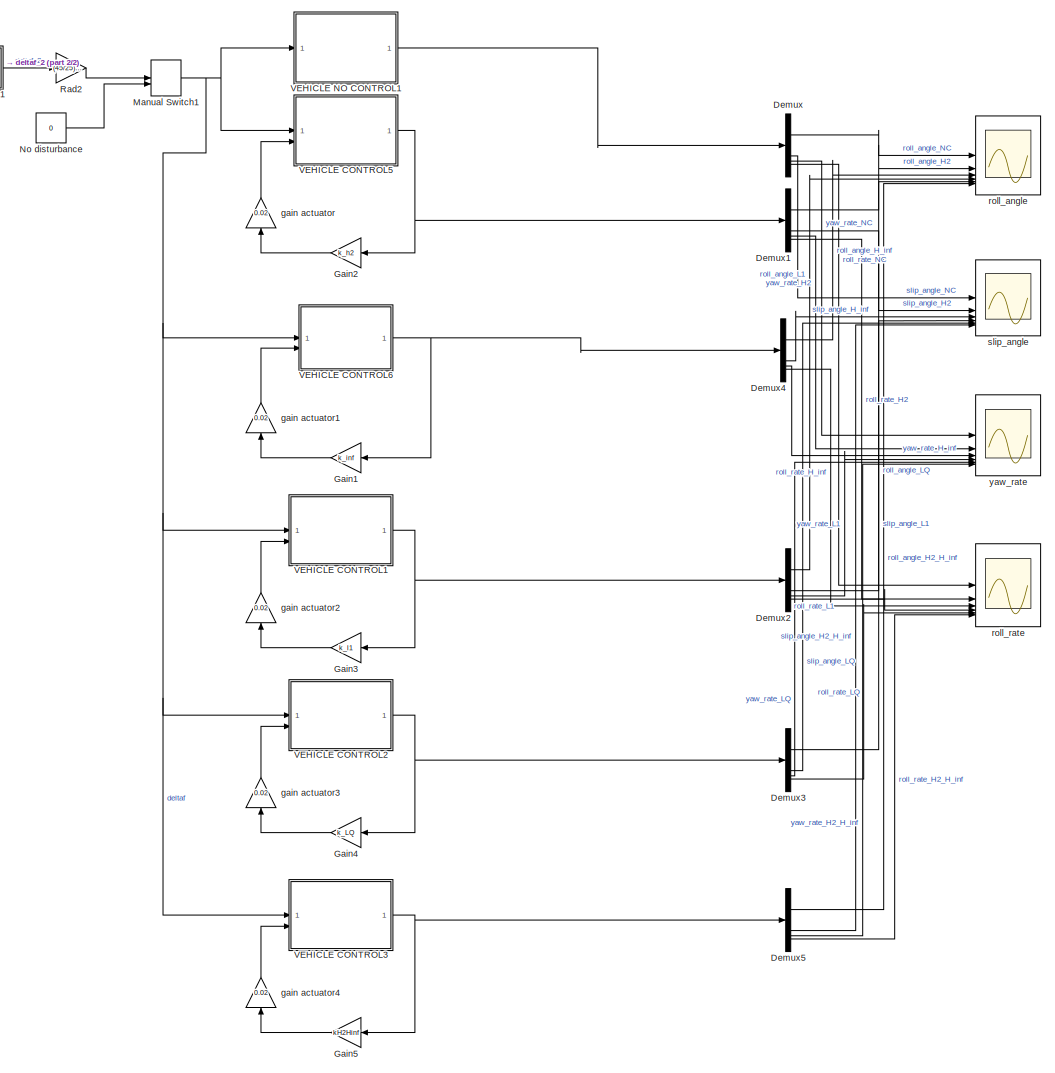
[diagram: root canvas - part 1/2, most of the canvas]
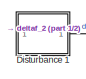
[diagram: root canvas - part 2/2, top left region]
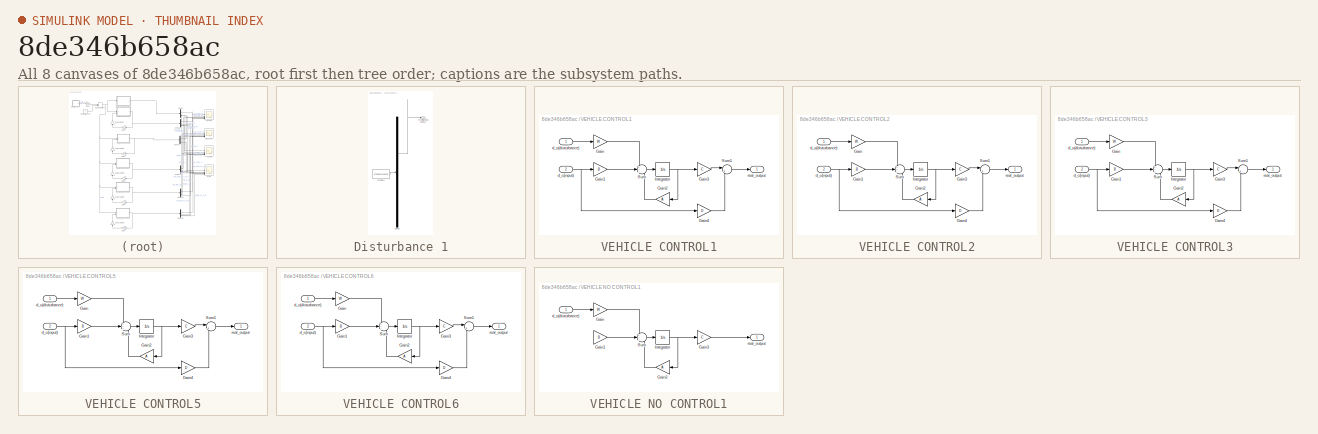
[diagram: thumbnail index - all 8 canvases of the model, root first then tree order]
MODEL slx_8de346b658ac
KIND model
CONFIG AbsTol = auto
CONFIG EnableMultiTasking = off
CONFIG FixedStep = auto
CONFIG MaxStep = auto
CONFIG MinStep = auto
CONFIG RelTol = 1e-3
CONFIG SampleTimeConstraint = Unconstrained
CONFIG SolverName = VariableStepAuto
CONFIG StartTime = 0.0
CONFIG StopTime = 6
BLOCK [Demux] Demux
BLOCK [Demux] Demux1
BLOCK [Demux] Demux2
BLOCK [Demux] Demux3
BLOCK [Demux] Demux4
BLOCK [Demux] Demux5
BLOCK [SubSystem] Disturbance 1
  ClipboardFcn = sigbuilder_block('clipboard');
  CloseFcn = sigbuilder_block('close');
  ContinueFcn = sigbuilder_block('continue');
  CopyFcn = sigbuilder_block('copy');
  DeleteFcn = sigbuilder_block('delete');
  LoadFcn = sigbuilder_block('load');
  MaskHideContents = on
  ModelCloseFcn = sigbuilder_block('modelClose');
  NameChangeFcn = sigbuilder_block('namechange');
  OpenFcn = sigbuilder_block('open',[265.8 141.6 550.8 400.2 ]);
  PauseFcn = sigbuilder_block('pause');
  PreSaveFcn = sigbuilder_block('preSave');
  StartFcn = sigbuilder_block('start');
  StopFcn = sigbuilder_block('stop');
  Tag = STV Subsys
BLOCK [Demux] Disturbance 1/Demux
  DisplayOption = none
  Outputs = 1
  Tag = STV Demux
BLOCK [FromWorkspace] Disturbance 1/FromWs
  Tag = STV FromWs
  VariableName = tuvar
BLOCK [Outport] Disturbance 1/Front steering angel_2
  Tag = STV Outport
BLOCK [Gain] Gain1
  Gain = k_inf
  Multiplication = Matrix(K*u)
  NameLocation = top
BLOCK [Gain] Gain2
  Gain = k_h2
  Multiplication = Matrix(K*u)
  NameLocation = top
BLOCK [Gain] Gain3
  Gain = k_l1
  Multiplication = Matrix(K*u)
  NameLocation = top
BLOCK [Gain] Gain4
  Gain = k_LQ
  Multiplication = Matrix(K*u)
  NameLocation = top
BLOCK [Gain] Gain5
  Gain = kH2Hinf
  Multiplication = Matrix(K*u)
  NameLocation = top
BLOCK [ManualSwitch] Manual Switch1
BLOCK [Constant] No disturbance
  Value = 0
BLOCK [Gain] Rad2
  Gain = (45/25)*(pi/180)
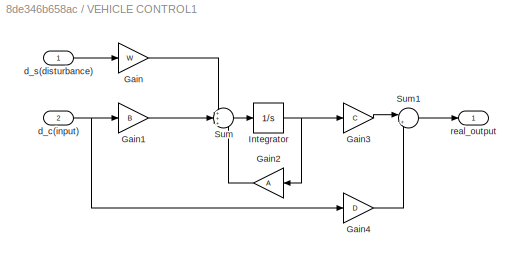
BLOCK [SubSystem] VEHICLE CONTROL1
BLOCK [Gain] VEHICLE CONTROL1/Gain
  Gain = W
  Multiplication = Matrix(K*u)
BLOCK [Gain] VEHICLE CONTROL1/Gain1
  Gain = B
  Multiplication = Matrix(K*u)
BLOCK [Gain] VEHICLE CONTROL1/Gain2
  Gain = A
  Multiplication = Matrix(K*u)
BLOCK [Gain] VEHICLE CONTROL1/Gain3
  Gain = C
  Multiplication = Matrix(K*u)
BLOCK [Gain] VEHICLE CONTROL1/Gain4
  Gain = D
  Multiplication = Matrix(K*u)
BLOCK [Integrator] VEHICLE CONTROL1/Integrator
  InitialCondition = [0, 0, 0, 0]
BLOCK [Sum] VEHICLE CONTROL1/Sum
  Inputs = +++
BLOCK [Sum] VEHICLE CONTROL1/Sum1
  Inputs = |++
BLOCK [Inport] VEHICLE CONTROL1/d_c(input)
  Port = 2
BLOCK [Inport] VEHICLE CONTROL1/d_s(disturbance)
BLOCK [Outport] VEHICLE CONTROL1/real_output
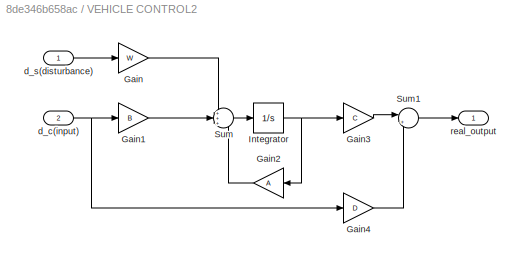
BLOCK [SubSystem] VEHICLE CONTROL2
BLOCK [Gain] VEHICLE CONTROL2/Gain
  Gain = W
  Multiplication = Matrix(K*u)
BLOCK [Gain] VEHICLE CONTROL2/Gain1
  Gain = B
  Multiplication = Matrix(K*u)
BLOCK [Gain] VEHICLE CONTROL2/Gain2
  Gain = A
  Multiplication = Matrix(K*u)
BLOCK [Gain] VEHICLE CONTROL2/Gain3
  Gain = C
  Multiplication = Matrix(K*u)
BLOCK [Gain] VEHICLE CONTROL2/Gain4
  Gain = D
  Multiplication = Matrix(K*u)
BLOCK [Integrator] VEHICLE CONTROL2/Integrator
  InitialCondition = [0, 0, 0, 0]
BLOCK [Sum] VEHICLE CONTROL2/Sum
  Inputs = +++
BLOCK [Sum] VEHICLE CONTROL2/Sum1
  Inputs = |++
BLOCK [Inport] VEHICLE CONTROL2/d_c(input)
  Port = 2
BLOCK [Inport] VEHICLE CONTROL2/d_s(disturbance)
BLOCK [Outport] VEHICLE CONTROL2/real_output
BLOCK [SubSystem] VEHICLE CONTROL3
BLOCK [Gain] VEHICLE CONTROL3/Gain
  Gain = W
  Multiplication = Matrix(K*u)
BLOCK [Gain] VEHICLE CONTROL3/Gain1
  Gain = B
  Multiplication = Matrix(K*u)
BLOCK [Gain] VEHICLE CONTROL3/Gain2
  Gain = A
  Multiplication = Matrix(K*u)
BLOCK [Gain] VEHICLE CONTROL3/Gain3
  Gain = C
  Multiplication = Matrix(K*u)
BLOCK [Gain] VEHICLE CONTROL3/Gain4
  Gain = D
  Multiplication = Matrix(K*u)
BLOCK [Integrator] VEHICLE CONTROL3/Integrator
  InitialCondition = [0, 0, 0, 0]
BLOCK [Sum] VEHICLE CONTROL3/Sum
  Inputs = +++
BLOCK [Sum] VEHICLE CONTROL3/Sum1
  Inputs = |++
BLOCK [Inport] VEHICLE CONTROL3/d_c(input)
  Port = 2
BLOCK [Inport] VEHICLE CONTROL3/d_s(disturbance)
BLOCK [Outport] VEHICLE CONTROL3/real_output
BLOCK [SubSystem] VEHICLE CONTROL5
BLOCK [Gain] VEHICLE CONTROL5/Gain
  Gain = W
  Multiplication = Matrix(K*u)
BLOCK [Gain] VEHICLE CONTROL5/Gain1
  Gain = B
  Multiplication = Matrix(K*u)
BLOCK [Gain] VEHICLE CONTROL5/Gain2
  Gain = A
  Multiplication = Matrix(K*u)
BLOCK [Gain] VEHICLE CONTROL5/Gain3
  Gain = C
  Multiplication = Matrix(K*u)
BLOCK [Gain] VEHICLE CONTROL5/Gain4
  Gain = D
  Multiplication = Matrix(K*u)
BLOCK [Integrator] VEHICLE CONTROL5/Integrator
  InitialCondition = [0, 0, 0, 0]
BLOCK [Sum] VEHICLE CONTROL5/Sum
  Inputs = +++
BLOCK [Sum] VEHICLE CONTROL5/Sum1
  Inputs = |++
BLOCK [Inport] VEHICLE CONTROL5/d_c(input)
  Port = 2
BLOCK [Inport] VEHICLE CONTROL5/d_s(disturbance)
BLOCK [Outport] VEHICLE CONTROL5/real_output
BLOCK [SubSystem] VEHICLE CONTROL6
BLOCK [Gain] VEHICLE CONTROL6/Gain
  Gain = W
  Multiplication = Matrix(K*u)
BLOCK [Gain] VEHICLE CONTROL6/Gain1
  Gain = B
  Multiplication = Matrix(K*u)
BLOCK [Gain] VEHICLE CONTROL6/Gain2
  Gain = A
  Multiplication = Matrix(K*u)
BLOCK [Gain] VEHICLE CONTROL6/Gain3
  Gain = C
  Multiplication = Matrix(K*u)
BLOCK [Gain] VEHICLE CONTROL6/Gain4
  Gain = D
  Multiplication = Matrix(K*u)
BLOCK [Integrator] VEHICLE CONTROL6/Integrator
  InitialCondition = [0, 0, 0, 0]
BLOCK [Sum] VEHICLE CONTROL6/Sum
  Inputs = +++
BLOCK [Sum] VEHICLE CONTROL6/Sum1
  Inputs = |++
BLOCK [Inport] VEHICLE CONTROL6/d_c(input)
  Port = 2
BLOCK [Inport] VEHICLE CONTROL6/d_s(disturbance)
BLOCK [Outport] VEHICLE CONTROL6/real_output
BLOCK [SubSystem] VEHICLE NO CONTROL1
BLOCK [Gain] VEHICLE NO CONTROL1/Gain
  Gain = W
  Multiplication = Matrix(K*u)
BLOCK [Gain] VEHICLE NO CONTROL1/Gain1
  Gain = B
  Multiplication = Matrix(K*u)
BLOCK [Gain] VEHICLE NO CONTROL1/Gain2
  Gain = A
  Multiplication = Matrix(K*u)
BLOCK [Gain] VEHICLE NO CONTROL1/Gain3
  Gain = C
  Multiplication = Matrix(K*u)
BLOCK [Integrator] VEHICLE NO CONTROL1/Integrator
  InitialCondition = [0, 0, 0, 0]
BLOCK [Sum] VEHICLE NO CONTROL1/Sum
  Inputs = +++
BLOCK [Inport] VEHICLE NO CONTROL1/d_s(disturbance)
BLOCK [Outport] VEHICLE NO CONTROL1/real_output
BLOCK [Gain] gain actuator
  Gain = 0.02
  NameLocation = left
BLOCK [Gain] gain actuator1
  Gain = 0.02
  NameLocation = left
BLOCK [Gain] gain actuator2
  Gain = 0.02
  NameLocation = left
BLOCK [Gain] gain actuator3
  Gain = 0.02
  NameLocation = left
BLOCK [Gain] gain actuator4
  Gain = 0.02
  NameLocation = left
BLOCK [Scope] roll_angle
  Floating = off
  NumInputPorts = 6
  ScopeSpecificationString = Simulink.scopes.TimeScopeBlockCfg('CurrentConfiguration', extmgr.ConfigurationSet(extmgr.Configuration('Core','General UI',true,'FigureColor',[1 1 1]),extmgr.Configuration('Core','Source UI',true),extmgr.Configuration('Sources','WiredSimulink',true,'DataLoggingVariableName','ScopeData1'),extmgr.Configuration('Visuals','Time Domain',true,'SerializedDisplays',{struct('MinYLimReal','-0.00155','MaxYLi...<+2277ch>
BLOCK [Scope] roll_rate
  Floating = off
  NumInputPorts = 6
  ScopeSpecificationString = Simulink.scopes.TimeScopeBlockCfg('CurrentConfiguration', extmgr.ConfigurationSet(extmgr.Configuration('Core','General UI',true,'FigureColor',[1 1 1]),extmgr.Configuration('Core','Source UI',true),extmgr.Configuration('Sources','WiredSimulink',true,'DataLoggingVariableName','ScopeData2'),extmgr.Configuration('Visuals','Time Domain',true,'SerializedDisplays',{struct('MinYLimReal','-0.00644','MaxYLi...<+2136ch>
BLOCK [Scope] slip_angle
  Floating = off
  NumInputPorts = 6
  ScopeSpecificationString = Simulink.scopes.TimeScopeBlockCfg('CurrentConfiguration', extmgr.ConfigurationSet(extmgr.Configuration('Core','General UI',true,'FigureColor',[1 1 1]),extmgr.Configuration('Core','Source UI',true),extmgr.Configuration('Sources','WiredSimulink',true,'DataLoggingVariableName','ScopeData3'),extmgr.Configuration('Visuals','Time Domain',true,'SerializedDisplays',{struct('MinYLimReal','-0.09643','MaxYLi...<+2281ch>
BLOCK [Scope] yaw_rate
  Floating = off
  NumInputPorts = 6
  ScopeSpecificationString = Simulink.scopes.TimeScopeBlockCfg('CurrentConfiguration', extmgr.ConfigurationSet(extmgr.Configuration('Core','General UI',true,'FigureColor',[1 1 1]),extmgr.Configuration('Core','Source UI',true),extmgr.Configuration('Sources','WiredSimulink',true),extmgr.Configuration('Visuals','Time Domain',true,'SerializedDisplays',{struct('MinYLimReal','-0.01298','MaxYLimReal','0.02214','YLabelReal','','MinYL...<+2095ch>
LINE Demux1:1 -> roll_angle:2
LINE Demux1:2 -> slip_angle:2
LINE Demux1:3 -> yaw_rate:2
LINE Demux1:4 -> roll_rate:2
LINE Demux2:1 -> roll_angle:4
LINE Demux2:2 -> slip_angle:4
LINE Demux2:3 -> yaw_rate:4
LINE Demux2:4 -> roll_rate:4
LINE Demux3:1 -> roll_angle:5
LINE Demux3:2 -> slip_angle:5
LINE Demux3:3 -> yaw_rate:5
LINE Demux3:4 -> roll_rate:5
LINE Demux4:1 -> roll_angle:3
LINE Demux4:2 -> slip_angle:3
LINE Demux4:3 -> yaw_rate:3
LINE Demux4:4 -> roll_rate:3
LINE Demux5:1 -> roll_angle:6
LINE Demux5:2 -> slip_angle:6
LINE Demux5:3 -> yaw_rate:6
LINE Demux5:4 -> roll_rate:6
LINE Demux:1 -> roll_angle:1
LINE Demux:2 -> slip_angle:1
LINE Demux:3 -> yaw_rate:1
LINE Demux:4 -> roll_rate:1
LINE Disturbance 1:1 -> Rad2:1
LINE Gain1:1 -> gain actuator1:1
LINE Gain2:1 -> gain actuator:1
LINE Gain3:1 -> gain actuator2:1
LINE Gain4:1 -> gain actuator3:1
LINE Gain5:1 -> gain actuator4:1
NET Manual Switch1:1 -> VEHICLE CONTROL1:1, VEHICLE CONTROL2:1, VEHICLE CONTROL3:1, VEHICLE CONTROL5:1, VEHICLE CONTROL6:1, VEHICLE NO CONTROL1:1
LINE No disturbance:1 -> Manual Switch1:2
LINE Rad2:1 -> Manual Switch1:1
LINE VEHICLE CONTROL1/Gain1:1 -> VEHICLE CONTROL1/Sum:2
LINE VEHICLE CONTROL1/Gain2:1 -> VEHICLE CONTROL1/Sum:3
LINE VEHICLE CONTROL1/Gain3:1 -> VEHICLE CONTROL1/Sum1:1
LINE VEHICLE CONTROL1/Gain4:1 -> VEHICLE CONTROL1/Sum1:2
LINE VEHICLE CONTROL1/Gain:1 -> VEHICLE CONTROL1/Sum:1
NET VEHICLE CONTROL1/Integrator:1 -> VEHICLE CONTROL1/Gain2:1, VEHICLE CONTROL1/Gain3:1
LINE VEHICLE CONTROL1/Sum1:1 -> VEHICLE CONTROL1/real_output:1
LINE VEHICLE CONTROL1/Sum:1 -> VEHICLE CONTROL1/Integrator:1
NET VEHICLE CONTROL1/d_c(input):1 -> VEHICLE CONTROL1/Gain1:1, VEHICLE CONTROL1/Gain4:1
LINE VEHICLE CONTROL1/d_s(disturbance):1 -> VEHICLE CONTROL1/Gain:1
NET VEHICLE CONTROL1:1 -> Demux2:1, Gain3:1
LINE VEHICLE CONTROL2/Gain1:1 -> VEHICLE CONTROL2/Sum:2
LINE VEHICLE CONTROL2/Gain2:1 -> VEHICLE CONTROL2/Sum:3
LINE VEHICLE CONTROL2/Gain3:1 -> VEHICLE CONTROL2/Sum1:1
LINE VEHICLE CONTROL2/Gain4:1 -> VEHICLE CONTROL2/Sum1:2
LINE VEHICLE CONTROL2/Gain:1 -> VEHICLE CONTROL2/Sum:1
NET VEHICLE CONTROL2/Integrator:1 -> VEHICLE CONTROL2/Gain2:1, VEHICLE CONTROL2/Gain3:1
LINE VEHICLE CONTROL2/Sum1:1 -> VEHICLE CONTROL2/real_output:1
LINE VEHICLE CONTROL2/Sum:1 -> VEHICLE CONTROL2/Integrator:1
NET VEHICLE CONTROL2/d_c(input):1 -> VEHICLE CONTROL2/Gain1:1, VEHICLE CONTROL2/Gain4:1
LINE VEHICLE CONTROL2/d_s(disturbance):1 -> VEHICLE CONTROL2/Gain:1
NET VEHICLE CONTROL2:1 -> Demux3:1, Gain4:1
LINE VEHICLE CONTROL3/Gain1:1 -> VEHICLE CONTROL3/Sum:2
LINE VEHICLE CONTROL3/Gain2:1 -> VEHICLE CONTROL3/Sum:3
LINE VEHICLE CONTROL3/Gain3:1 -> VEHICLE CONTROL3/Sum1:1
LINE VEHICLE CONTROL3/Gain4:1 -> VEHICLE CONTROL3/Sum1:2
LINE VEHICLE CONTROL3/Gain:1 -> VEHICLE CONTROL3/Sum:1
NET VEHICLE CONTROL3/Integrator:1 -> VEHICLE CONTROL3/Gain2:1, VEHICLE CONTROL3/Gain3:1
LINE VEHICLE CONTROL3/Sum1:1 -> VEHICLE CONTROL3/real_output:1
LINE VEHICLE CONTROL3/Sum:1 -> VEHICLE CONTROL3/Integrator:1
NET VEHICLE CONTROL3/d_c(input):1 -> VEHICLE CONTROL3/Gain1:1, VEHICLE CONTROL3/Gain4:1
LINE VEHICLE CONTROL3/d_s(disturbance):1 -> VEHICLE CONTROL3/Gain:1
NET VEHICLE CONTROL3:1 -> Demux5:1, Gain5:1
LINE VEHICLE CONTROL5/Gain1:1 -> VEHICLE CONTROL5/Sum:2
LINE VEHICLE CONTROL5/Gain2:1 -> VEHICLE CONTROL5/Sum:3
LINE VEHICLE CONTROL5/Gain3:1 -> VEHICLE CONTROL5/Sum1:1
LINE VEHICLE CONTROL5/Gain4:1 -> VEHICLE CONTROL5/Sum1:2
LINE VEHICLE CONTROL5/Gain:1 -> VEHICLE CONTROL5/Sum:1
NET VEHICLE CONTROL5/Integrator:1 -> VEHICLE CONTROL5/Gain2:1, VEHICLE CONTROL5/Gain3:1
LINE VEHICLE CONTROL5/Sum1:1 -> VEHICLE CONTROL5/real_output:1
LINE VEHICLE CONTROL5/Sum:1 -> VEHICLE CONTROL5/Integrator:1
NET VEHICLE CONTROL5/d_c(input):1 -> VEHICLE CONTROL5/Gain1:1, VEHICLE CONTROL5/Gain4:1
LINE VEHICLE CONTROL5/d_s(disturbance):1 -> VEHICLE CONTROL5/Gain:1
NET VEHICLE CONTROL5:1 -> Demux1:1, Gain2:1
LINE VEHICLE CONTROL6/Gain1:1 -> VEHICLE CONTROL6/Sum:2
LINE VEHICLE CONTROL6/Gain2:1 -> VEHICLE CONTROL6/Sum:3
LINE VEHICLE CONTROL6/Gain3:1 -> VEHICLE CONTROL6/Sum1:1
LINE VEHICLE CONTROL6/Gain4:1 -> VEHICLE CONTROL6/Sum1:2
LINE VEHICLE CONTROL6/Gain:1 -> VEHICLE CONTROL6/Sum:1
NET VEHICLE CONTROL6/Integrator:1 -> VEHICLE CONTROL6/Gain2:1, VEHICLE CONTROL6/Gain3:1
LINE VEHICLE CONTROL6/Sum1:1 -> VEHICLE CONTROL6/real_output:1
LINE VEHICLE CONTROL6/Sum:1 -> VEHICLE CONTROL6/Integrator:1
NET VEHICLE CONTROL6/d_c(input):1 -> VEHICLE CONTROL6/Gain1:1, VEHICLE CONTROL6/Gain4:1
LINE VEHICLE CONTROL6/d_s(disturbance):1 -> VEHICLE CONTROL6/Gain:1
NET VEHICLE CONTROL6:1 -> Demux4:1, Gain1:1
LINE VEHICLE NO CONTROL1/Gain1:1 -> VEHICLE NO CONTROL1/Sum:2
LINE VEHICLE NO CONTROL1/Gain2:1 -> VEHICLE NO CONTROL1/Sum:3
LINE VEHICLE NO CONTROL1/Gain3:1 -> VEHICLE NO CONTROL1/real_output:1
LINE VEHICLE NO CONTROL1/Gain:1 -> VEHICLE NO CONTROL1/Sum:1
NET VEHICLE NO CONTROL1/Integrator:1 -> VEHICLE NO CONTROL1/Gain2:1, VEHICLE NO CONTROL1/Gain3:1
LINE VEHICLE NO CONTROL1/Sum:1 -> VEHICLE NO CONTROL1/Integrator:1
LINE VEHICLE NO CONTROL1/d_s(disturbance):1 -> VEHICLE NO CONTROL1/Gain:1
LINE VEHICLE NO CONTROL1:1 -> Demux:1
LINE gain actuator1:1 -> VEHICLE CONTROL6:2
LINE gain actuator2:1 -> VEHICLE CONTROL1:2
LINE gain actuator3:1 -> VEHICLE CONTROL2:2
LINE gain actuator4:1 -> VEHICLE CONTROL3:2
LINE gain actuator:1 -> VEHICLE CONTROL5:2
note: NET lines group one-source signal fan-out (src -> all destinations, sorted); 1:1 wires keep LINE
